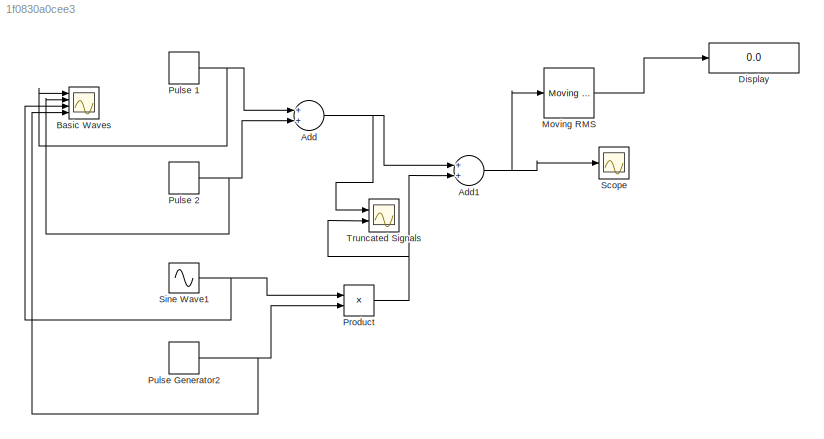
MODEL slx_1f0830a0cee3
KIND model
CONFIG AbsTol = auto
CONFIG EnableMultiTasking = off
CONFIG FixedStep = auto
CONFIG MaxStep = auto
CONFIG MinStep = auto
CONFIG RelTol = 1e-3
CONFIG SampleTimeConstraint = Unconstrained
CONFIG Solver = VariableStepAuto
CONFIG SolverName = VariableStepAuto
CONFIG StartTime = 0.0
CONFIG StopTime = .00017
BLOCK [Sum] Add
  InputSameDT = off
  OutDataTypeStr = Inherit: Inherit via internal rule
  Ports = [2, 1]
  SaturateOnIntegerOverflow = off
BLOCK [Sum] Add1
  InputSameDT = off
  OutDataTypeStr = Inherit: Inherit via internal rule
  Ports = [2, 1]
  SaturateOnIntegerOverflow = off
BLOCK [Scope] Basic Waves
  NumInputPorts = 4
  Ports = [4]
  ScopeSpecificationString = Simulink.scopes.TimeScopeBlockCfg('CurrentConfiguration', extmgr.ConfigurationSet(extmgr.Configuration('Core','General UI',true),extmgr.Configuration('Core','Source UI',true),extmgr.Configuration('Sources','WiredSimulink',true,'DataLoggingVariableName','ScopeData1'),extmgr.Configuration('Visuals','Time Domain',true,'SerializedDisplays',{struct('MinYLimReal','-13.75','MaxYLimReal','13.75','YLabelRe...<+1474ch>
BLOCK [Display] Display
  Decimation = 1
  Ports = [1]
BLOCK [Reference] Moving RMS  REF=dspstat3/Moving
RMS
  Ports = [1, 1]
  SourceBlock = dspstat3/Moving\nRMS
  SourceType = dsp.MovingRMS
BLOCK [Product] Product
  InputSameDT = off
  OutDataTypeStr = Inherit: Inherit via internal rule
  Ports = [2, 1]
  RndMeth = Floor
  SaturateOnIntegerOverflow = off
BLOCK [DiscretePulseGenerator] Pulse 1 
  Amplitude = 11
  Period = .00017
  PhaseDelay = .0000408
  Ports = [0, 1]
  PulseType = Time based
  PulseWidth = 44
BLOCK [DiscretePulseGenerator] Pulse 2
  Amplitude = -11
  Period = .00017
  PhaseDelay = .0001156
  Ports = [0, 1]
  PulseType = Time based
  PulseWidth = 32
BLOCK [DiscretePulseGenerator] Pulse Generator2
  Period = .00017
  Ports = [0, 1]
  PulseType = Time based
  PulseWidth = 24
BLOCK [Scope] Scope
  NumInputPorts = 1
  Ports = [1]
  ScopeSpecificationString = Simulink.scopes.TimeScopeBlockCfg('CurrentConfiguration', extmgr.ConfigurationSet(extmgr.Configuration('Core','General UI',true),extmgr.Configuration('Core','Source UI',true),extmgr.Configuration('Sources','WiredSimulink',true),extmgr.Configuration('Visuals','Time Domain',true,'SerializedDisplays',{struct('MinYLimReal','-13.75','MaxYLimReal','13.75','YLabelReal','','MinYLimMag','0.00000','MaxYLimM...<+1312ch>
BLOCK [Sin] Sine Wave1
  Amplitude = 11
  Frequency = 6127*2*pi
  Ports = [0, 1]
  SampleTime = 0
BLOCK [Scope] Truncated Signals
  NumInputPorts = 2
  Ports = [2]
  ScopeSpecificationString = Simulink.scopes.TimeScopeBlockCfg('CurrentConfiguration', extmgr.ConfigurationSet(extmgr.Configuration('Core','General UI',true),extmgr.Configuration('Core','Source UI',true),extmgr.Configuration('Sources','WiredSimulink',true,'DataLoggingVariableName','ScopeData2'),extmgr.Configuration('Visuals','Time Domain',true,'SerializedDisplays',{struct('MinYLimReal','-13.75','MaxYLimReal','13.75','YLabelRe...<+1389ch>
NET Add1:1 -> Moving RMS:1, Scope:1
NET Add:1 -> Add1:1, Truncated Signals:1
LINE Moving RMS:1 -> Display:1
NET Product:1 -> Add1:2, Truncated Signals:2
NET Pulse 1 :1 -> Add:1, Basic Waves:1
NET Pulse 2:1 -> Add:2, Basic Waves:2
NET Pulse Generator2:1 -> Basic Waves:4, Product:2
NET Sine Wave1:1 -> Basic Waves:3, Product:1
note: NET lines group one-source signal fan-out (src -> all destinations, sorted); 1:1 wires keep LINE
